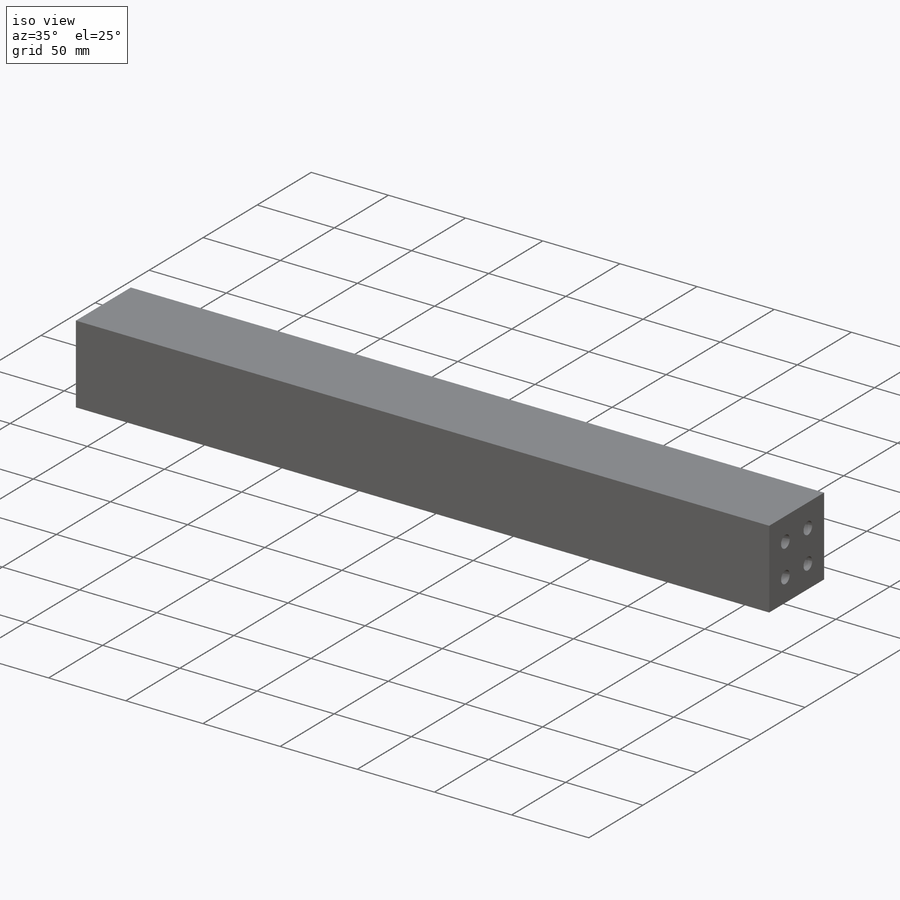
[diagram: iso view]
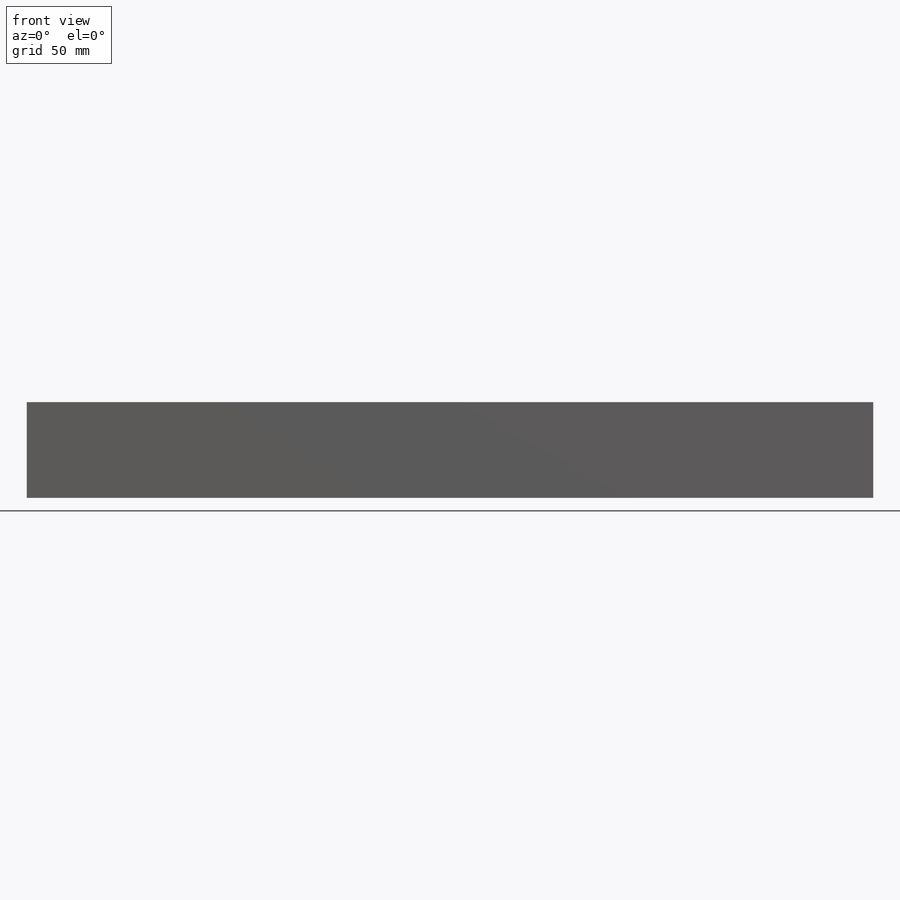
[diagram: front view]
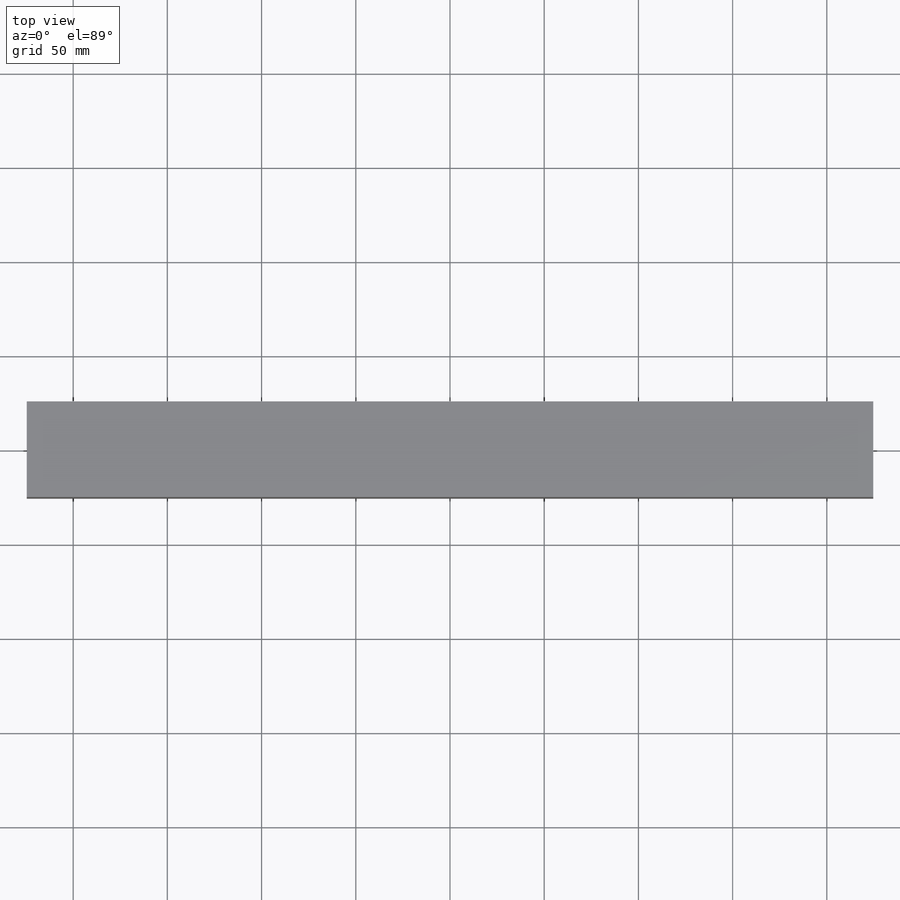
[diagram: top view]
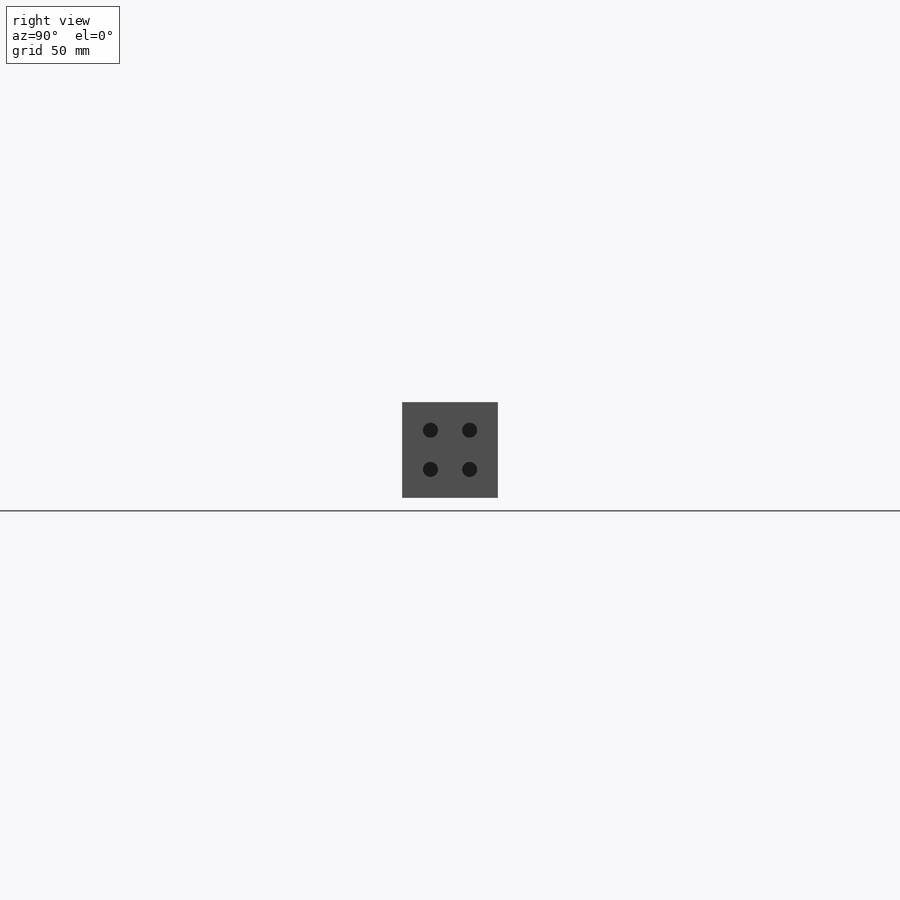
[diagram: right view]
SOLIDWORKS PART (.sldprt)
format: sldprt  version: not decoded by parser v0  size: 347,648 bytes
history: native  units: mm
features: plane x3, sketch x3, cut_extrude x2, material x1, extrude x1 (+9 scaffold rows collapsed)
feature tree (19):
  scaffold x9  (default folders/planes/origin — collapsed)
  material  "Pino"
  plane  "Alzado"
  plane  "Planta"
  plane  "Vista lateral"
  sketch  "Croquis1"  dims[D1=50.8mm D2=449.2mm]
  extrude  "Saliente-Extruir1"  Depth=50.8mm
  sketch  "Croquis2"  dims[D1=~7.176417mm D2=15.0mm D3=15.0mm D5=15.0mm D4=4.0]
  cut_extrude  "Cortar-Extruir1"  Depth=10mm
  sketch  "Croquis3"
  cut_extrude  "Cortar-Extruir2"  Depth=10mm
decode coverage: 5 of 6 modeling features carry decoded parameters
note: ~ marks probable driven/reference dimensions
note: suppression state not decoded; provenance and decode notes live in map.json
